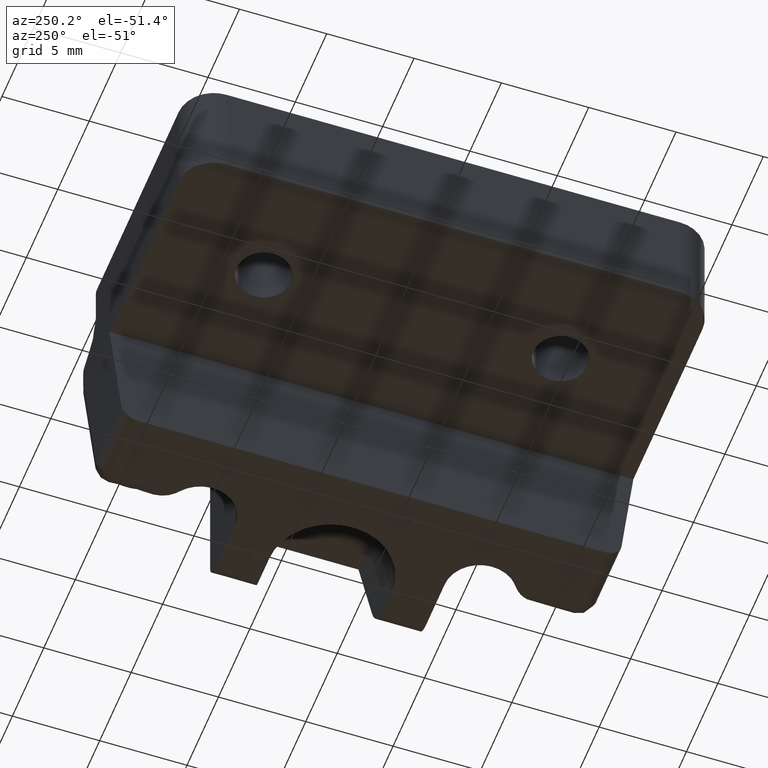
[diagram: clean part render]
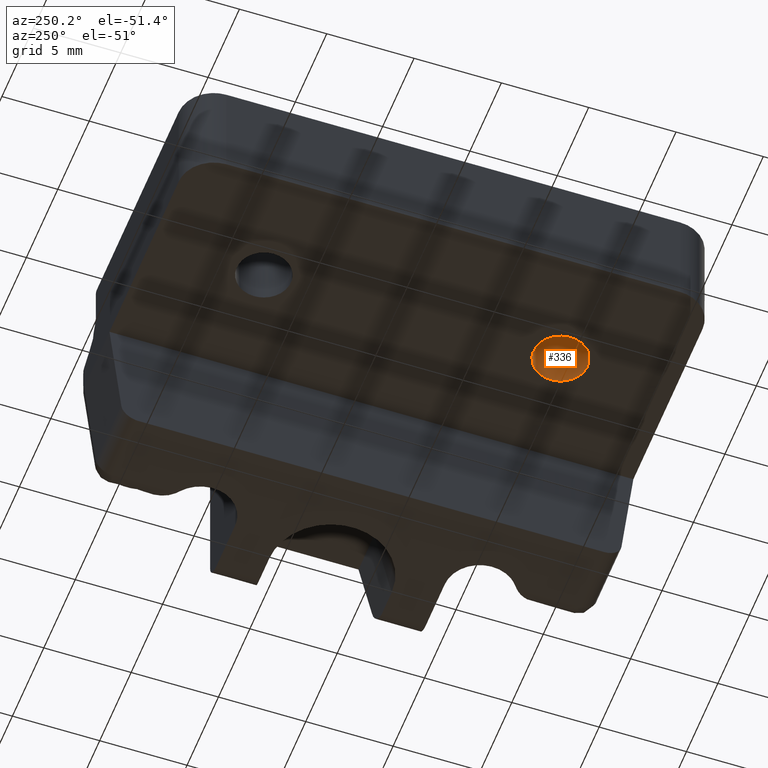
[diagram: same view with one face highlighted and labeled with its STEP entity id]
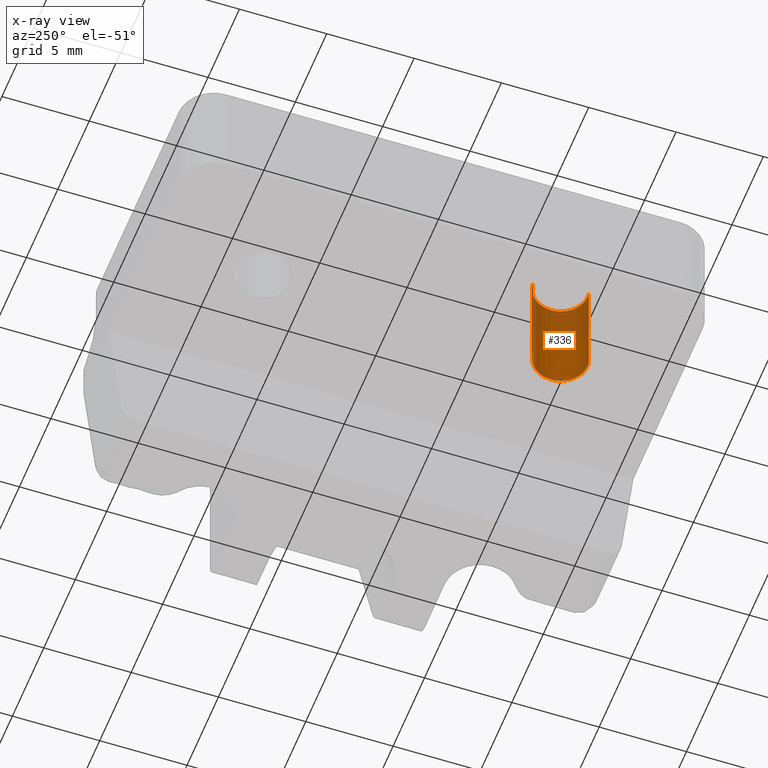
[diagram: x-ray of the same camera — body ghosted, the highlighted face saturated]
A machine part, auxiliary view. The second image highlights one B-rep face of the part: STEP entity #336.
The next image is the same camera in x-ray: the body ghosted, the highlighted face saturated — about 42% of this face is hidden behind the body in this view.
In plain terms, the highlighted face is a freeform B-spline surface patch.
Its self-contained STEP definition (entity closure, byte-faithful):
#234=CARTESIAN_POINT('',(-182.682953063717970,-18.039164765863688,38.350000000000001));
#235=CARTESIAN_POINT('',(-182.638902829388880,-18.044400803945337,38.350000000000009));
#236=CARTESIAN_POINT('',(-182.594625236279000,-18.047108937553890,38.350000000000001));
#237=CARTESIAN_POINT('',(-181.047516298725100,-18.141734173832923,38.350000000000001));
#238=CARTESIAN_POINT('',(-180.952891062446100,-16.594625236279029,38.350000000000001));
#239=CARTESIAN_POINT('',(-180.858265826167100,-15.047516298725132,38.350000000000001));
#240=CARTESIAN_POINT('',(-182.405374763721000,-14.952891062446110,38.350000000000001));
#241=CARTESIAN_POINT('',(-182.682953063717970,-18.039164765863688,44.653749999999995));
#242=CARTESIAN_POINT('',(-182.638902829388880,-18.044400803945337,44.653750000000009));
#243=CARTESIAN_POINT('',(-182.594625236279000,-18.047108937553890,44.653750000000002));
#244=CARTESIAN_POINT('',(-181.047516298725100,-18.141734173832923,44.653750000000002));
#245=CARTESIAN_POINT('',(-180.952891062446100,-16.594625236279029,44.653750000000002));
#246=CARTESIAN_POINT('',(-180.858265826167100,-15.047516298725132,44.653750000000002));
#247=CARTESIAN_POINT('',(-182.405374763721000,-14.952891062446110,44.653750000000002));
#255=(BOUNDED_SURFACE()B_SPLINE_SURFACE(2,1,((#234,#241),(#235,#242),(#236,#243),(#237,#244),(#238,#245),(#239,#246),(#240,#247)),.UNSPECIFIED.,.F.,.F.,.U.)B_SPLINE_SURFACE_WITH_KNOTS((3,2,2,3),(2,2),(3.078760800517997,3.141592653589793,4.712388980384690,6.283185307179586),(0.0,6.303750000000003),.UNSPECIFIED.)GEOMETRIC_REPRESENTATION_ITEM()RATIONAL_B_SPLINE_SURFACE(((0.977505800795127,0.977505800795127),(0.988284271247462,0.988284271247462),(1.0,1.0),(0.707106781186548,0.707106781186548),(1.0,1.0),(0.707106781186548,0.707106781186548),(1.0,1.0)))REPRESENTATION_ITEM('')SURFACE());
#256=CARTESIAN_POINT('',(-182.682950599423890,-18.039165058778380,38.499999999999979));
#257=VERTEX_POINT('',#256);
#258=CARTESIAN_POINT('',(-180.949999999999990,-16.500000000000000,38.500000000000000));
#259=VERTEX_POINT('',#258);
#260=CARTESIAN_POINT('',(-182.682950599423890,-18.039165058778377,38.499999999999986));
#261=CARTESIAN_POINT('',(-182.591796140287640,-18.049999999999997,38.500000000000000));
#262=CARTESIAN_POINT('',(-182.500000000000000,-18.050000000000001,38.500000000000000));
#263=CARTESIAN_POINT('',(-180.950000000000050,-18.049999999999997,38.500000000000000));
#264=CARTESIAN_POINT('',(-180.949999999999990,-16.500000000000000,38.500000000000000));
#272=(BOUNDED_CURVE()B_SPLINE_CURVE(2,(#260,#261,#262,#263,#264),.UNSPECIFIED.,.F.,.U.)B_SPLINE_CURVE_WITH_KNOTS((3,2,3),(0.729562744099891,0.750000000000000,1.0),.UNSPECIFIED.)CURVE()GEOMETRIC_REPRESENTATION_ITEM()RATIONAL_B_SPLINE_CURVE((0.956027284544769,0.976056265342812,1.0,0.707106781186547,1.0))REPRESENTATION_ITEM(''));
#273=EDGE_CURVE('',#257,#259,#272,.T.);
#274=ORIENTED_EDGE('',*,*,#273,.F.);
#275=CARTESIAN_POINT('',(-182.682950629191510,-18.039165055240151,44.500000000000000));
#276=VERTEX_POINT('',#275);
#277=CARTESIAN_POINT('',(-182.682950599423890,-18.039165058778380,38.499999999999979));
#278=CARTESIAN_POINT('',(-182.682950629191510,-18.039165055240151,44.500000000000000));
#279=QUASI_UNIFORM_CURVE('',1,(#277,#278),.UNSPECIFIED.,.F.,.U.);
#280=EDGE_CURVE('',#257,#276,#279,.T.);
#281=ORIENTED_EDGE('',*,*,#280,.T.);
#282=CARTESIAN_POINT('',(-180.949999999999990,-16.500000000000000,44.500000000000000));
#283=VERTEX_POINT('',#282);
#284=CARTESIAN_POINT('',(-182.682950629191570,-18.039165055240154,44.499999999999993));
#285=CARTESIAN_POINT('',(-182.591796155328810,-18.050000000000001,44.500000000000000));
#286=CARTESIAN_POINT('',(-182.500000000000000,-18.050000000000001,44.500000000000000));
#287=CARTESIAN_POINT('',(-180.950000000000050,-18.049999999999997,44.500000000000000));
#288=CARTESIAN_POINT('',(-180.949999999999990,-16.500000000000000,44.500000000000000));
#296=(BOUNDED_CURVE()B_SPLINE_CURVE(2,(#284,#285,#286,#287,#288),.UNSPECIFIED.,.F.,.U.)B_SPLINE_CURVE_WITH_KNOTS((3,2,3),(0.229562740831351,0.250000000000000,0.500000000000000),.UNSPECIFIED.)CURVE()GEOMETRIC_REPRESENTATION_ITEM()RATIONAL_B_SPLINE_CURVE((0.956027278138279,0.976056261513478,1.0,0.707106781186547,1.0))REPRESENTATION_ITEM(''));
#297=EDGE_CURVE('',#276,#283,#296,.T.);
#298=ORIENTED_EDGE('',*,*,#297,.T.);
#299=CARTESIAN_POINT('',(-182.405374763646510,-14.952891062450661,44.500000000000000));
#300=VERTEX_POINT('',#299);
#301=CARTESIAN_POINT('',(-180.949999999999990,-16.500000000000000,44.500000000000000));
#302=CARTESIAN_POINT('',(-180.950000000000020,-15.041905596436823,44.499999999999993));
#303=CARTESIAN_POINT('',(-182.405374763646510,-14.952891062450668,44.500000000000007));
#311=(BOUNDED_CURVE()B_SPLINE_CURVE(2,(#301,#302,#303),.UNSPECIFIED.,.F.,.U.)B_SPLINE_CURVE_WITH_KNOTS((3,3),(0.500000000000000,0.739332962225356),.UNSPECIFIED.)CURVE()GEOMETRIC_REPRESENTATION_ITEM()RATIONAL_B_SPLINE_CURVE((1.0,0.719603993302628,0.976072041637598))REPRESENTATION_ITEM(''));
#312=EDGE_CURVE('',#283,#300,#311,.T.);
#313=ORIENTED_EDGE('',*,*,#312,.T.);
#314=CARTESIAN_POINT('',(-182.405374763646510,-14.952891062450661,38.500000000000000));
#315=VERTEX_POINT('',#314);
#316=CARTESIAN_POINT('',(-182.405374763646510,-14.952891062450661,38.500000000000000));
#317=CARTESIAN_POINT('',(-182.405374763646510,-14.952891062450661,44.500000000000000));
#318=QUASI_UNIFORM_CURVE('',1,(#316,#317),.UNSPECIFIED.,.F.,.U.);
#319=EDGE_CURVE('',#315,#300,#318,.T.);
#320=ORIENTED_EDGE('',*,*,#319,.F.);
#321=CARTESIAN_POINT('',(-180.949999999999990,-16.500000000000000,38.500000000000000));
#322=CARTESIAN_POINT('',(-180.950000000000020,-15.041905596436820,38.500000000000007));
#323=CARTESIAN_POINT('',(-182.405374763646560,-14.952891062450664,38.500000000000007));
#331=(BOUNDED_CURVE()B_SPLINE_CURVE(2,(#321,#322,#323),.UNSPECIFIED.,.F.,.U.)B_SPLINE_CURVE_WITH_KNOTS((3,3),(0.0,0.239332962225356),.UNSPECIFIED.)CURVE()GEOMETRIC_REPRESENTATION_ITEM()RATIONAL_B_SPLINE_CURVE((1.0,0.719603993302628,0.976072041637599))REPRESENTATION_ITEM(''));
#332=EDGE_CURVE('',#259,#315,#331,.T.);
#333=ORIENTED_EDGE('',*,*,#332,.F.);
#334=EDGE_LOOP('',(#274,#281,#298,#313,#320,#333));
#335=FACE_OUTER_BOUND('',#334,.T.);
#336=ADVANCED_FACE('',(#335),#255,.F.);